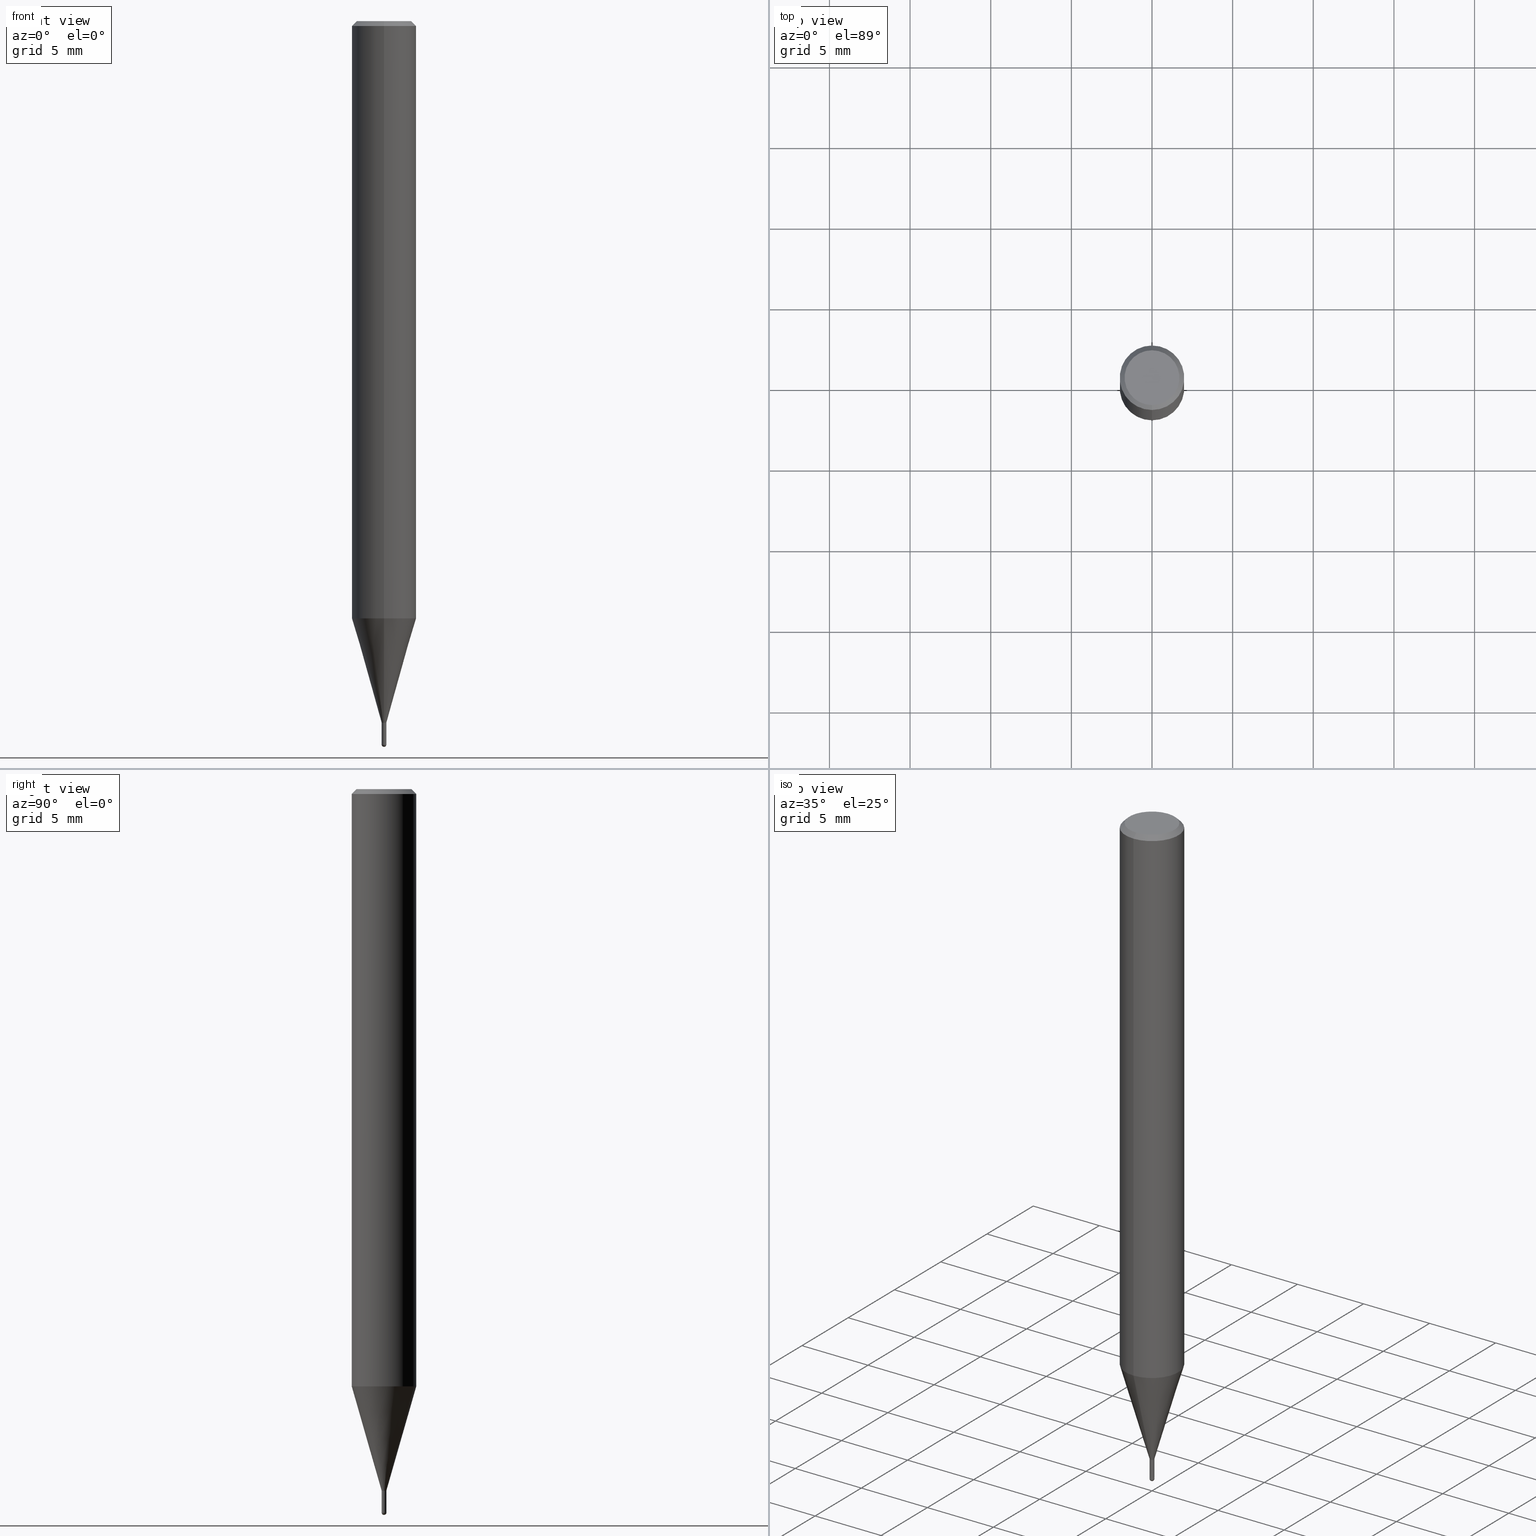
[diagram: canonical four-view strip — front | top / right | iso, engineering-drawing reading convention]
A machine part, canonical four-view strip (front | top / right | iso — engineering-drawing reading convention). The complete STEP part file that produces these views, byte-faithful:
ISO-10303-21;
HEADER;
FILE_DESCRIPTION(('no description'),'unknown implementation level');
FILE_NAME('HSLB2003-015-Huellk.stp','  ',('CIMSOURCE GmbH'),('CADClick - KiM GmbH - www.kimweb.de'),'unknown preprocess','ACIS','unknown authorization');
FILE_SCHEMA(('automotive_design'));
ENDSEC;
DATA;
#1=MECHANICAL_DESIGN_GEOMETRIC_PRESENTATION_REPRESENTATION(' ',(#14,#15,#16,#17,#18,#19,#20,#21,#22,#23,#24,#25,#26,#27,#28,#29,#30,#31,#32,#33,#34,#35,#36,#37,#38,#39,#40,#41,#42,#43,#44,#45,#46,#47,#48,#49,#50,#51,#52,#53,#54,#55,#56,#57,#58,#59,#60,#61,#62,#63,#64,#65,#66,#67,#68,#69,#70,#71,#72,#73,#74),#10);
#2=PRODUCT_DEFINITION_CONTEXT('',#75,'design');
#3=APPLICATION_PROTOCOL_DEFINITION('INTERNATIONAL STANDARD','automotive_design',1994,#75);
#4=PRODUCT_CATEGORY_RELATIONSHIP('NONE','NONE',#76,#77);
#5=SHAPE_DEFINITION_REPRESENTATION(#78,#79);
#6=PRODUCT_DEFINITION_CONTEXT('',#80,'design');
#7=APPLICATION_PROTOCOL_DEFINITION('INTERNATIONAL STANDARD','automotive_design',1994,#80);
#8=PRODUCT_CATEGORY_RELATIONSHIP('NONE','NONE',#81,#82);
#9=SHAPE_DEFINITION_REPRESENTATION(#83,#84);
#10= (GEOMETRIC_REPRESENTATION_CONTEXT(3)GLOBAL_UNCERTAINTY_ASSIGNED_CONTEXT((#87))GLOBAL_UNIT_ASSIGNED_CONTEXT((#89,#90,#91))REPRESENTATION_CONTEXT('NONE','WORKSPACE'));
#14=STYLED_ITEM('',(#93),#94);
#15=STYLED_ITEM('',(#95),#96);
#16=STYLED_ITEM('',(#97),#98);
#17=STYLED_ITEM('',(#99),#100);
#18=STYLED_ITEM('',(#101),#102);
#19=STYLED_ITEM('',(#103),#104);
#20=STYLED_ITEM('',(#105),#106);
#21=STYLED_ITEM('',(#107),#108);
#22=STYLED_ITEM('',(#109),#110);
#23=STYLED_ITEM('',(#111),#112);
#24=STYLED_ITEM('',(#113),#114);
#25=STYLED_ITEM('',(#115),#116);
#26=STYLED_ITEM('',(#117),#118);
#27=STYLED_ITEM('',(#119),#120);
#28=STYLED_ITEM('',(#121),#122);
#29=STYLED_ITEM('',(#123),#124);
#30=STYLED_ITEM('',(#125),#126);
#31=STYLED_ITEM('',(#127),#128);
#32=STYLED_ITEM('',(#129),#130);
#33=STYLED_ITEM('',(#131),#132);
#34=STYLED_ITEM('',(#133),#134);
#35=STYLED_ITEM('',(#135),#136);
#36=STYLED_ITEM('',(#137),#138);
#37=STYLED_ITEM('',(#139),#140);
#38=STYLED_ITEM('',(#141),#142);
#39=STYLED_ITEM('',(#143),#144);
#40=STYLED_ITEM('',(#145),#146);
#41=STYLED_ITEM('',(#147),#148);
#42=STYLED_ITEM('',(#149),#150);
#43=STYLED_ITEM('',(#151),#152);
#44=STYLED_ITEM('',(#153),#154);
#45=STYLED_ITEM('',(#155),#156);
#46=STYLED_ITEM('',(#157),#158);
#47=STYLED_ITEM('',(#159),#160);
#48=STYLED_ITEM('',(#161),#162);
#49=STYLED_ITEM('',(#163),#164);
#50=STYLED_ITEM('',(#165),#166);
#51=STYLED_ITEM('',(#167),#168);
#52=STYLED_ITEM('',(#169),#170);
#53=STYLED_ITEM('',(#171),#172);
#54=STYLED_ITEM('',(#173),#174);
#55=STYLED_ITEM('',(#175),#176);
#56=STYLED_ITEM('',(#177),#178);
#57=STYLED_ITEM('',(#179),#180);
#58=STYLED_ITEM('',(#181),#182);
#59=STYLED_ITEM('',(#183),#184);
#60=STYLED_ITEM('',(#185),#186);
#61=STYLED_ITEM('',(#187),#188);
#62=STYLED_ITEM('',(#189),#190);
#63=STYLED_ITEM('',(#191),#192);
#64=STYLED_ITEM('',(#193),#194);
#65=STYLED_ITEM('',(#195),#196);
#66=STYLED_ITEM('',(#197),#198);
#67=STYLED_ITEM('',(#199),#200);
#68=STYLED_ITEM('',(#201),#202);
#69=STYLED_ITEM('',(#203),#204);
#70=STYLED_ITEM('',(#205),#206);
#71=STYLED_ITEM('',(#207),#208);
#72=STYLED_ITEM('',(#209),#210);
#73=STYLED_ITEM('',(#211),#212);
#74=STYLED_ITEM('',(#213),#214);
#75=APPLICATION_CONTEXT(' ');
#76=PRODUCT_CATEGORY('part','NONE');
#77=PRODUCT_RELATED_PRODUCT_CATEGORY('detail',' ',(#215));
#78=PRODUCT_DEFINITION_SHAPE('NONE','NONE',#216);
#79=ADVANCED_BREP_SHAPE_REPRESENTATION('1',(#214,#217),#10);
#80=APPLICATION_CONTEXT(' ');
#81=PRODUCT_CATEGORY('part','NONE');
#82=PRODUCT_RELATED_PRODUCT_CATEGORY('detail',' ',(#218));
#83=PRODUCT_DEFINITION_SHAPE('NONE','NONE',#219);
#84=ADVANCED_BREP_SHAPE_REPRESENTATION('2',(#176,#220),#10);
#87=UNCERTAINTY_MEASURE_WITH_UNIT(LENGTH_MEASURE(1.0E-006),#89,'','');
#89= (CONVERSION_BASED_UNIT('MILLIMETRE',#223)LENGTH_UNIT()NAMED_UNIT(#226));
#90= (NAMED_UNIT(#228)PLANE_ANGLE_UNIT()SI_UNIT($,.RADIAN.));
#91= (NAMED_UNIT(#228)SOLID_ANGLE_UNIT()SI_UNIT($,.STERADIAN.));
#93=PRESENTATION_STYLE_ASSIGNMENT((#234));
#94=ADVANCED_FACE('',(#235),#236,.T.);
#95=PRESENTATION_STYLE_ASSIGNMENT((#237));
#96=EDGE_CURVE('',#166,#152,#238,.T.);
#97=PRESENTATION_STYLE_ASSIGNMENT((#239));
#98=EDGE_CURVE('',#186,#142,#240,.T.);
#99=PRESENTATION_STYLE_ASSIGNMENT((#241));
#100=EDGE_CURVE('',#136,#130,#242,.T.);
#101=PRESENTATION_STYLE_ASSIGNMENT((#243));
#102=EDGE_CURVE('',#104,#136,#244,.T.);
#103=PRESENTATION_STYLE_ASSIGNMENT((#245));
#104=VERTEX_POINT('',#246);
#105=PRESENTATION_STYLE_ASSIGNMENT((#247));
#106=EDGE_CURVE('',#118,#110,#248,.T.);
#107=PRESENTATION_STYLE_ASSIGNMENT((#249));
#108=EDGE_CURVE('',#186,#196,#250,.T.);
#109=PRESENTATION_STYLE_ASSIGNMENT((#251));
#110=VERTEX_POINT('',#252);
#111=PRESENTATION_STYLE_ASSIGNMENT((#253));
#112=ADVANCED_FACE('',(#254),#255,.T.);
#113=PRESENTATION_STYLE_ASSIGNMENT((#256));
#114=EDGE_CURVE('',#110,#130,#257,.T.);
#115=PRESENTATION_STYLE_ASSIGNMENT((#258));
#116=EDGE_CURVE('',#166,#174,#259,.T.);
#117=PRESENTATION_STYLE_ASSIGNMENT((#260));
#118=VERTEX_POINT('',#261);
#119=PRESENTATION_STYLE_ASSIGNMENT((#262));
#120=EDGE_CURVE('',#154,#208,#263,.T.);
#121=PRESENTATION_STYLE_ASSIGNMENT((#264));
#122=ADVANCED_FACE('',(#265),#266,.T.);
#123=PRESENTATION_STYLE_ASSIGNMENT((#267));
#124=ADVANCED_FACE('',(#268),#269,.T.);
#125=PRESENTATION_STYLE_ASSIGNMENT((#270));
#126=EDGE_CURVE('',#196,#208,#271,.T.);
#127=PRESENTATION_STYLE_ASSIGNMENT((#272));
#128=EDGE_CURVE('',#110,#104,#273,.T.);
#129=PRESENTATION_STYLE_ASSIGNMENT((#274));
#130=VERTEX_POINT('',#275);
#131=PRESENTATION_STYLE_ASSIGNMENT((#276));
#132=EDGE_CURVE('',#210,#174,#277,.T.);
#133=PRESENTATION_STYLE_ASSIGNMENT((#278));
#134=EDGE_CURVE('',#208,#154,#279,.T.);
#135=PRESENTATION_STYLE_ASSIGNMENT((#280));
#136=VERTEX_POINT('',#281);
#137=PRESENTATION_STYLE_ASSIGNMENT((#282));
#138=EDGE_CURVE('',#136,#104,#283,.T.);
#139=PRESENTATION_STYLE_ASSIGNMENT((#284));
#140=ADVANCED_FACE('',(#285,#286),#287,.T.);
#141=PRESENTATION_STYLE_ASSIGNMENT((#288));
#142=VERTEX_POINT('',#289);
#143=PRESENTATION_STYLE_ASSIGNMENT((#290));
#144=EDGE_CURVE('',#130,#172,#291,.T.);
#145=PRESENTATION_STYLE_ASSIGNMENT((#292));
#146=ADVANCED_FACE('',(#293),#294,.T.);
#147=PRESENTATION_STYLE_ASSIGNMENT((#295));
#148=ADVANCED_FACE('',(#296),#297,.T.);
#149=PRESENTATION_STYLE_ASSIGNMENT((#298));
#150=ADVANCED_FACE('',(#299),#300,.T.);
#151=PRESENTATION_STYLE_ASSIGNMENT((#301));
#152=VERTEX_POINT('',#302);
#153=PRESENTATION_STYLE_ASSIGNMENT((#303));
#154=VERTEX_POINT('',#304);
#155=PRESENTATION_STYLE_ASSIGNMENT((#305));
#156=EDGE_CURVE('',#174,#166,#306,.T.);
#157=PRESENTATION_STYLE_ASSIGNMENT((#307));
#158=EDGE_CURVE('',#152,#210,#308,.T.);
#159=PRESENTATION_STYLE_ASSIGNMENT((#309));
#160=EDGE_CURVE('',#210,#152,#310,.T.);
#161=PRESENTATION_STYLE_ASSIGNMENT((#311));
#162=EDGE_CURVE('',#180,#142,#312,.T.);
#163=PRESENTATION_STYLE_ASSIGNMENT((#313));
#164=EDGE_CURVE('',#180,#196,#314,.T.);
#165=PRESENTATION_STYLE_ASSIGNMENT((#315));
#166=VERTEX_POINT('',#316);
#167=PRESENTATION_STYLE_ASSIGNMENT((#317));
#168=EDGE_CURVE('',#172,#118,#318,.T.);
#169=PRESENTATION_STYLE_ASSIGNMENT((#319));
#170=EDGE_CURVE('',#166,#174,#320,.T.);
#171=PRESENTATION_STYLE_ASSIGNMENT((#321));
#172=VERTEX_POINT('',#322);
#173=PRESENTATION_STYLE_ASSIGNMENT((#323));
#174=VERTEX_POINT('',#324);
#175=PRESENTATION_STYLE_ASSIGNMENT((#325));
#176=MANIFOLD_SOLID_BREP('2',#326);
#177=PRESENTATION_STYLE_ASSIGNMENT((#327));
#178=ADVANCED_FACE('',(#328),#329,.T.);
#179=PRESENTATION_STYLE_ASSIGNMENT((#330));
#180=VERTEX_POINT('',#331);
#181=PRESENTATION_STYLE_ASSIGNMENT((#332));
#182=ADVANCED_FACE('',(#333),#334,.T.);
#183=PRESENTATION_STYLE_ASSIGNMENT((#335));
#184=ADVANCED_FACE('',(#336),#337,.T.);
#185=PRESENTATION_STYLE_ASSIGNMENT((#338));
#186=VERTEX_POINT('',#339);
#187=PRESENTATION_STYLE_ASSIGNMENT((#340));
#188=ADVANCED_FACE('',(#341),#342,.T.);
#189=PRESENTATION_STYLE_ASSIGNMENT((#343));
#190=EDGE_CURVE('',#118,#172,#344,.T.);
#191=PRESENTATION_STYLE_ASSIGNMENT((#345));
#192=EDGE_CURVE('',#130,#110,#346,.T.);
#193=PRESENTATION_STYLE_ASSIGNMENT((#347));
#194=EDGE_CURVE('',#196,#186,#348,.T.);
#195=PRESENTATION_STYLE_ASSIGNMENT((#349));
#196=VERTEX_POINT('',#350);
#197=PRESENTATION_STYLE_ASSIGNMENT((#351));
#198=ADVANCED_FACE('',(#352),#353,.T.);
#199=PRESENTATION_STYLE_ASSIGNMENT((#354));
#200=ADVANCED_FACE('',(#355),#356,.T.);
#201=PRESENTATION_STYLE_ASSIGNMENT((#357));
#202=ADVANCED_FACE('',(#358),#359,.T.);
#203=PRESENTATION_STYLE_ASSIGNMENT((#360));
#204=EDGE_CURVE('',#154,#186,#361,.T.);
#205=PRESENTATION_STYLE_ASSIGNMENT((#362));
#206=EDGE_CURVE('',#142,#180,#363,.T.);
#207=PRESENTATION_STYLE_ASSIGNMENT((#364));
#208=VERTEX_POINT('',#365);
#209=PRESENTATION_STYLE_ASSIGNMENT((#366));
#210=VERTEX_POINT('',#367);
#211=PRESENTATION_STYLE_ASSIGNMENT((#368));
#212=ADVANCED_FACE('',(#369),#370,.T.);
#213=PRESENTATION_STYLE_ASSIGNMENT((#371));
#214=MANIFOLD_SOLID_BREP('1',#372);
#215=PRODUCT('1','1','PART-1-DESC',(#373));
#216=PRODUCT_DEFINITION('NONE','NONE',#374,#2);
#217=AXIS2_PLACEMENT_3D('',#375,#376,#377);
#218=PRODUCT('2','2','PART-2-DESC',(#378));
#219=PRODUCT_DEFINITION('NONE','NONE',#379,#6);
#220=AXIS2_PLACEMENT_3D('',#380,#381,#382);
#223=LENGTH_MEASURE_WITH_UNIT(LENGTH_MEASURE(1.0),#383);
#226=DIMENSIONAL_EXPONENTS(1.0,0.0,0.0,0.0,0.0,0.0,0.0);
#228=DIMENSIONAL_EXPONENTS(0.0,0.0,0.0,0.0,0.0,0.0,0.0);
#234=SURFACE_STYLE_USAGE(.BOTH.,#384);
#235=FACE_OUTER_BOUND('',#385,.T.);
#236=SPHERICAL_SURFACE('',#386,0.15);
#237=CURVE_STYLE('',#387,POSITIVE_LENGTH_MEASURE(1.0E-006),#388);
#238=LINE('',#389,#390);
#239=CURVE_STYLE('',#391,POSITIVE_LENGTH_MEASURE(1.0E-006),#392);
#240=LINE('',#393,#394);
#241=CURVE_STYLE('',#395,POSITIVE_LENGTH_MEASURE(1.0E-006),#396);
#242=LINE('',#397,#398);
#243=CURVE_STYLE('',#399,POSITIVE_LENGTH_MEASURE(1.0E-006),#400);
#244=CIRCLE('',#401,2.0);
#245=POINT_STYLE(' ',#402,POSITIVE_LENGTH_MEASURE(1.0E-006),#403);
#246=CARTESIAN_POINT('',(0.0,2.0,-37.031));
#247=CURVE_STYLE('',#404,POSITIVE_LENGTH_MEASURE(1.0E-006),#405);
#248=LINE('',#406,#407);
#249=CURVE_STYLE('',#408,POSITIVE_LENGTH_MEASURE(1.0E-006),#409);
#250=CIRCLE('',#410,0.14495);
#251=POINT_STYLE(' ',#411,POSITIVE_LENGTH_MEASURE(1.0E-006),#412);
#252=CARTESIAN_POINT('',(0.0,2.0,-0.299999999999997));
#253=SURFACE_STYLE_USAGE(.BOTH.,#413);
#254=FACE_OUTER_BOUND('',#414,.T.);
#255=CONICAL_SURFACE('',#415,1.85,0.785398163397453);
#256=CURVE_STYLE('',#416,POSITIVE_LENGTH_MEASURE(1.0E-006),#417);
#257=CIRCLE('',#418,2.0);
#258=CURVE_STYLE('',#419,POSITIVE_LENGTH_MEASURE(1.0E-006),#420);
#259=CIRCLE('',#421,0.15);
#260=POINT_STYLE(' ',#422,POSITIVE_LENGTH_MEASURE(1.0E-006),#423);
#261=CARTESIAN_POINT('',(0.0,1.7,0.0));
#262=CURVE_STYLE('',#424,POSITIVE_LENGTH_MEASURE(1.0E-006),#425);
#263=CIRCLE('',#426,1.99995);
#264=SURFACE_STYLE_USAGE(.BOTH.,#427);
#265=FACE_OUTER_BOUND('',#428,.T.);
#266=PLANE('',#429);
#267=SURFACE_STYLE_USAGE(.BOTH.,#430);
#268=FACE_OUTER_BOUND('',#431,.T.);
#269=CONICAL_SURFACE('',#432,0.14995,0.00111111065386396);
#270=CURVE_STYLE('',#433,POSITIVE_LENGTH_MEASURE(1.0E-006),#434);
#271=LINE('',#435,#436);
#272=CURVE_STYLE('',#437,POSITIVE_LENGTH_MEASURE(1.0E-006),#438);
#273=LINE('',#439,#440);
#274=POINT_STYLE(' ',#441,POSITIVE_LENGTH_MEASURE(1.0E-006),#442);
#275=CARTESIAN_POINT('',(2.44921270764475E-016,-2.0,-0.299999999999997));
#276=CURVE_STYLE('',#443,POSITIVE_LENGTH_MEASURE(1.0E-006),#444);
#277=LINE('',#445,#446);
#278=CURVE_STYLE('',#447,POSITIVE_LENGTH_MEASURE(1.0E-006),#448);
#279=CIRCLE('',#449,1.99995);
#280=POINT_STYLE(' ',#450,POSITIVE_LENGTH_MEASURE(1.0E-006),#451);
#281=CARTESIAN_POINT('',(2.44921270764475E-016,-2.0,-37.031));
#282=CURVE_STYLE('',#452,POSITIVE_LENGTH_MEASURE(1.0E-006),#453);
#283=CIRCLE('',#454,2.0);
#284=SURFACE_STYLE_USAGE(.BOTH.,#455);
#285=FACE_OUTER_BOUND('',#456,.T.);
#286=FACE_BOUND('',#457,.T.);
#287=PLANE('',#458);
#288=POINT_STYLE(' ',#459,POSITIVE_LENGTH_MEASURE(1.0E-006),#460);
#289=CARTESIAN_POINT('',(0.0,0.14495,-44.76));
#290=CURVE_STYLE('',#461,POSITIVE_LENGTH_MEASURE(1.0E-006),#462);
#291=LINE('',#463,#464);
#292=SURFACE_STYLE_USAGE(.BOTH.,#465);
#293=FACE_OUTER_BOUND('',#466,.T.);
#294=CYLINDRICAL_SURFACE('',#467,0.14495);
#295=SURFACE_STYLE_USAGE(.BOTH.,#468);
#296=FACE_OUTER_BOUND('',#469,.T.);
#297=CONICAL_SURFACE('',#470,1.07245,0.279258979430111);
#298=SURFACE_STYLE_USAGE(.BOTH.,#471);
#299=FACE_OUTER_BOUND('',#472,.T.);
#300=PLANE('',#473);
#301=POINT_STYLE(' ',#474,POSITIVE_LENGTH_MEASURE(1.0E-006),#475);
#302=CARTESIAN_POINT('',(1.83568492437974E-017,-0.1499,-44.76));
#303=POINT_STYLE(' ',#476,POSITIVE_LENGTH_MEASURE(1.0E-006),#477);
#304=CARTESIAN_POINT('',(0.0,1.99995,-37.031));
#305=CURVE_STYLE('',#478,POSITIVE_LENGTH_MEASURE(1.0E-006),#479);
#306=CIRCLE('',#480,0.15);
#307=CURVE_STYLE('',#481,POSITIVE_LENGTH_MEASURE(1.0E-006),#482);
#308=CIRCLE('',#483,0.1499);
#309=CURVE_STYLE('',#484,POSITIVE_LENGTH_MEASURE(1.0E-006),#485);
#310=CIRCLE('',#486,0.1499);
#311=CURVE_STYLE('',#487,POSITIVE_LENGTH_MEASURE(1.0E-006),#488);
#312=CIRCLE('',#489,0.14495);
#313=CURVE_STYLE('',#490,POSITIVE_LENGTH_MEASURE(1.0E-006),#491);
#314=LINE('',#492,#493);
#315=POINT_STYLE(' ',#494,POSITIVE_LENGTH_MEASURE(1.0E-006),#495);
#316=CARTESIAN_POINT('',(1.83690953073356E-017,-0.15,-44.85));
#317=CURVE_STYLE('',#496,POSITIVE_LENGTH_MEASURE(1.0E-006),#497);
#318=CIRCLE('',#498,1.7);
#319=CURVE_STYLE('',#499,POSITIVE_LENGTH_MEASURE(1.0E-006),#500);
#320=CIRCLE('',#501,0.15);
#321=POINT_STYLE(' ',#502,POSITIVE_LENGTH_MEASURE(1.0E-006),#503);
#322=CARTESIAN_POINT('',(2.08183080149804E-016,-1.7,0.0));
#323=POINT_STYLE(' ',#504,POSITIVE_LENGTH_MEASURE(1.0E-006),#505);
#324=CARTESIAN_POINT('',(0.0,0.15,-44.85));
#325=SURFACE_STYLE_USAGE(.BOTH.,#506);
#326=CLOSED_SHELL('',(#198,#124,#150,#178,#94));
#327=SURFACE_STYLE_USAGE(.BOTH.,#507);
#328=FACE_OUTER_BOUND('',#508,.T.);
#329=CONICAL_SURFACE('',#509,0.14995,0.00111111065386396);
#330=POINT_STYLE(' ',#510,POSITIVE_LENGTH_MEASURE(1.0E-006),#511);
#331=CARTESIAN_POINT('',(1.77506690986554E-017,-0.14495,-44.76));
#332=SURFACE_STYLE_USAGE(.BOTH.,#512);
#333=FACE_OUTER_BOUND('',#513,.T.);
#334=CYLINDRICAL_SURFACE('',#514,2.0);
#335=SURFACE_STYLE_USAGE(.BOTH.,#515);
#336=FACE_OUTER_BOUND('',#516,.T.);
#337=CONICAL_SURFACE('',#517,1.85,0.785398163397453);
#338=POINT_STYLE(' ',#518,POSITIVE_LENGTH_MEASURE(1.0E-006),#519);
#339=CARTESIAN_POINT('',(0.0,0.14495,-43.5));
#340=SURFACE_STYLE_USAGE(.BOTH.,#520);
#341=FACE_OUTER_BOUND('',#521,.T.);
#342=CYLINDRICAL_SURFACE('',#522,0.14495);
#343=CURVE_STYLE('',#523,POSITIVE_LENGTH_MEASURE(1.0E-006),#524);
#344=CIRCLE('',#525,1.7);
#345=CURVE_STYLE('',#526,POSITIVE_LENGTH_MEASURE(1.0E-006),#527);
#346=CIRCLE('',#528,2.0);
#347=CURVE_STYLE('',#529,POSITIVE_LENGTH_MEASURE(1.0E-006),#530);
#348=CIRCLE('',#531,0.14495);
#349=POINT_STYLE(' ',#532,POSITIVE_LENGTH_MEASURE(1.0E-006),#533);
#350=CARTESIAN_POINT('',(1.77506690986553E-017,-0.14495,-43.5));
#351=SURFACE_STYLE_USAGE(.BOTH.,#534);
#352=FACE_OUTER_BOUND('',#535,.T.);
#353=SPHERICAL_SURFACE('',#536,0.15);
#354=SURFACE_STYLE_USAGE(.BOTH.,#537);
#355=FACE_OUTER_BOUND('',#538,.T.);
#356=PLANE('',#539);
#357=SURFACE_STYLE_USAGE(.BOTH.,#540);
#358=FACE_OUTER_BOUND('',#541,.T.);
#359=CONICAL_SURFACE('',#542,1.07245,0.279258979430111);
#360=CURVE_STYLE('',#543,POSITIVE_LENGTH_MEASURE(1.0E-006),#544);
#361=LINE('',#545,#546);
#362=CURVE_STYLE('',#547,POSITIVE_LENGTH_MEASURE(1.0E-006),#548);
#363=CIRCLE('',#549,0.14495);
#364=POINT_STYLE(' ',#550,POSITIVE_LENGTH_MEASURE(1.0E-006),#551);
#365=CARTESIAN_POINT('',(2.44915147732706E-016,-1.99995,-37.031));
#366=POINT_STYLE(' ',#552,POSITIVE_LENGTH_MEASURE(1.0E-006),#553);
#367=CARTESIAN_POINT('',(0.0,0.1499,-44.76));
#368=SURFACE_STYLE_USAGE(.BOTH.,#554);
#369=FACE_OUTER_BOUND('',#555,.T.);
#370=CYLINDRICAL_SURFACE('',#556,2.0);
#371=SURFACE_STYLE_USAGE(.BOTH.,#557);
#372=CLOSED_SHELL('',(#188,#148,#182,#184,#140,#200,#112,#212,#202,#146,#122));
#373=PRODUCT_CONTEXT('',#75,'mechanical');
#374=PRODUCT_DEFINITION_FORMATION_WITH_SPECIFIED_SOURCE(' ','NONE',#215,.NOT_KNOWN.);
#375=CARTESIAN_POINT('',(0.0,0.0,0.0));
#376=DIRECTION('',(0.0,0.0,1.0));
#377=DIRECTION('',(1.0,0.0,0.0));
#378=PRODUCT_CONTEXT('',#80,'mechanical');
#379=PRODUCT_DEFINITION_FORMATION_WITH_SPECIFIED_SOURCE(' ','NONE',#218,.NOT_KNOWN.);
#380=CARTESIAN_POINT('',(0.0,0.0,0.0));
#381=DIRECTION('',(0.0,0.0,1.0));
#382=DIRECTION('',(1.0,0.0,0.0));
#383= (NAMED_UNIT(#226)LENGTH_UNIT()SI_UNIT(.MILLI.,.METRE.));
#384=SURFACE_SIDE_STYLE('',(#559));
#385=EDGE_LOOP('',(#560,#561));
#386=AXIS2_PLACEMENT_3D('',#562,#563,#564);
#387=DRAUGHTING_PRE_DEFINED_CURVE_FONT('continuous');
#388=COLOUR_RGB('',0.800000011920929,0.800000011920929,0.800000011920929);
#389=CARTESIAN_POINT('',(1.83629722755665E-017,-0.14995,-44.805));
#390=VECTOR('',#565,1.0);
#391=DRAUGHTING_PRE_DEFINED_CURVE_FONT('continuous');
#392=COLOUR_RGB('',0.498039215803146,0.498039215803146,0.498039215803146);
#393=CARTESIAN_POINT('',(-1.77506690986554E-017,0.14495,-44.13));
#394=VECTOR('',#566,1.0);
#395=DRAUGHTING_PRE_DEFINED_CURVE_FONT('continuous');
#396=COLOUR_RGB('',0.498039215803146,0.498039215803146,0.498039215803146);
#397=CARTESIAN_POINT('',(2.44921270764475E-016,-2.0,-18.6655));
#398=VECTOR('',#567,1.0);
#399=DRAUGHTING_PRE_DEFINED_CURVE_FONT('continuous');
#400=COLOUR_RGB('',0.498039215803146,0.498039215803146,0.498039215803146);
#401=AXIS2_PLACEMENT_3D('',#568,#569,#570);
#402=PRE_DEFINED_MARKER('');
#403=COLOUR_RGB('',0.498039215803146,0.498039215803146,0.498039215803146);
#404=DRAUGHTING_PRE_DEFINED_CURVE_FONT('continuous');
#405=COLOUR_RGB('',0.498039215803146,0.498039215803146,0.498039215803146);
#406=CARTESIAN_POINT('',(-2.2655217545714E-016,1.85,-0.149999999999999));
#407=VECTOR('',#571,1.0);
#408=DRAUGHTING_PRE_DEFINED_CURVE_FONT('continuous');
#409=COLOUR_RGB('',0.498039215803146,0.498039215803146,0.498039215803146);
#410=AXIS2_PLACEMENT_3D('',#572,#573,#574);
#411=PRE_DEFINED_MARKER('');
#412=COLOUR_RGB('',0.498039215803146,0.498039215803146,0.498039215803146);
#413=SURFACE_SIDE_STYLE('',(#575));
#414=EDGE_LOOP('',(#576,#577,#578,#579));
#415=AXIS2_PLACEMENT_3D('',#580,#581,#582);
#416=DRAUGHTING_PRE_DEFINED_CURVE_FONT('continuous');
#417=COLOUR_RGB('',0.498039215803146,0.498039215803146,0.498039215803146);
#418=AXIS2_PLACEMENT_3D('',#583,#584,#585);
#419=DRAUGHTING_PRE_DEFINED_CURVE_FONT('continuous');
#420=COLOUR_RGB('',0.800000011920929,0.800000011920929,0.800000011920929);
#421=AXIS2_PLACEMENT_3D('',#586,#587,#588);
#422=PRE_DEFINED_MARKER('');
#423=COLOUR_RGB('',0.498039215803146,0.498039215803146,0.498039215803146);
#424=DRAUGHTING_PRE_DEFINED_CURVE_FONT('continuous');
#425=COLOUR_RGB('',0.498039215803146,0.498039215803146,0.498039215803146);
#426=AXIS2_PLACEMENT_3D('',#589,#590,#591);
#427=SURFACE_SIDE_STYLE('',(#592));
#428=EDGE_LOOP('',(#593,#594));
#429=AXIS2_PLACEMENT_3D('',#595,#596,#597);
#430=SURFACE_SIDE_STYLE('',(#598));
#431=EDGE_LOOP('',(#599,#600,#601,#602));
#432=AXIS2_PLACEMENT_3D('',#603,#604,#605);
#433=DRAUGHTING_PRE_DEFINED_CURVE_FONT('continuous');
#434=COLOUR_RGB('',0.498039215803146,0.498039215803146,0.498039215803146);
#435=CARTESIAN_POINT('',(1.31332908415681E-016,-1.07245,-40.2655));
#436=VECTOR('',#606,1.0);
#437=DRAUGHTING_PRE_DEFINED_CURVE_FONT('continuous');
#438=COLOUR_RGB('',0.498039215803146,0.498039215803146,0.498039215803146);
#439=CARTESIAN_POINT('',(-2.44921270764475E-016,2.0,-18.6655));
#440=VECTOR('',#607,1.0);
#441=PRE_DEFINED_MARKER('');
#442=COLOUR_RGB('',0.498039215803146,0.498039215803146,0.498039215803146);
#443=DRAUGHTING_PRE_DEFINED_CURVE_FONT('continuous');
#444=COLOUR_RGB('',0.800000011920929,0.800000011920929,0.800000011920929);
#445=CARTESIAN_POINT('',(-1.83629722755665E-017,0.14995,-44.805));
#446=VECTOR('',#608,1.0);
#447=DRAUGHTING_PRE_DEFINED_CURVE_FONT('continuous');
#448=COLOUR_RGB('',0.498039215803146,0.498039215803146,0.498039215803146);
#449=AXIS2_PLACEMENT_3D('',#609,#610,#611);
#450=PRE_DEFINED_MARKER('');
#451=COLOUR_RGB('',0.498039215803146,0.498039215803146,0.498039215803146);
#452=DRAUGHTING_PRE_DEFINED_CURVE_FONT('continuous');
#453=COLOUR_RGB('',0.498039215803146,0.498039215803146,0.498039215803146);
#454=AXIS2_PLACEMENT_3D('',#612,#613,#614);
#455=SURFACE_SIDE_STYLE('',(#615));
#456=EDGE_LOOP('',(#616,#617));
#457=EDGE_LOOP('',(#618,#619));
#458=AXIS2_PLACEMENT_3D('',#620,#621,#622);
#459=PRE_DEFINED_MARKER('');
#460=COLOUR_RGB('',0.498039215803146,0.498039215803146,0.498039215803146);
#461=DRAUGHTING_PRE_DEFINED_CURVE_FONT('continuous');
#462=COLOUR_RGB('',0.498039215803146,0.498039215803146,0.498039215803146);
#463=CARTESIAN_POINT('',(2.2655217545714E-016,-1.85,-0.149999999999999));
#464=VECTOR('',#623,1.0);
#465=SURFACE_SIDE_STYLE('',(#624));
#466=EDGE_LOOP('',(#625,#626,#627,#628));
#467=AXIS2_PLACEMENT_3D('',#629,#630,#631);
#468=SURFACE_SIDE_STYLE('',(#632));
#469=EDGE_LOOP('',(#633,#634,#635,#636));
#470=AXIS2_PLACEMENT_3D('',#637,#638,#639);
#471=SURFACE_SIDE_STYLE('',(#640));
#472=EDGE_LOOP('',(#641,#642));
#473=AXIS2_PLACEMENT_3D('',#643,#644,#645);
#474=PRE_DEFINED_MARKER('');
#475=COLOUR_RGB('',0.800000011920929,0.800000011920929,0.800000011920929);
#476=PRE_DEFINED_MARKER('');
#477=COLOUR_RGB('',0.498039215803146,0.498039215803146,0.498039215803146);
#478=DRAUGHTING_PRE_DEFINED_CURVE_FONT('continuous');
#479=COLOUR_RGB('',0.800000011920929,0.800000011920929,0.800000011920929);
#480=AXIS2_PLACEMENT_3D('',#646,#647,#648);
#481=DRAUGHTING_PRE_DEFINED_CURVE_FONT('continuous');
#482=COLOUR_RGB('',0.800000011920929,0.800000011920929,0.800000011920929);
#483=AXIS2_PLACEMENT_3D('',#649,#650,#651);
#484=DRAUGHTING_PRE_DEFINED_CURVE_FONT('continuous');
#485=COLOUR_RGB('',0.800000011920929,0.800000011920929,0.800000011920929);
#486=AXIS2_PLACEMENT_3D('',#652,#653,#654);
#487=DRAUGHTING_PRE_DEFINED_CURVE_FONT('continuous');
#488=COLOUR_RGB('',0.498039215803146,0.498039215803146,0.498039215803146);
#489=AXIS2_PLACEMENT_3D('',#655,#656,#657);
#490=DRAUGHTING_PRE_DEFINED_CURVE_FONT('continuous');
#491=COLOUR_RGB('',0.498039215803146,0.498039215803146,0.498039215803146);
#492=CARTESIAN_POINT('',(1.77506690986554E-017,-0.14495,-44.13));
#493=VECTOR('',#658,1.0);
#494=PRE_DEFINED_MARKER('');
#495=COLOUR_RGB('',0.800000011920929,0.800000011920929,0.800000011920929);
#496=DRAUGHTING_PRE_DEFINED_CURVE_FONT('continuous');
#497=COLOUR_RGB('',0.498039215803146,0.498039215803146,0.498039215803146);
#498=AXIS2_PLACEMENT_3D('',#659,#660,#661);
#499=DRAUGHTING_PRE_DEFINED_CURVE_FONT('continuous');
#500=COLOUR_RGB('',0.800000011920929,0.800000011920929,0.800000011920929);
#501=AXIS2_PLACEMENT_3D('',#662,#663,#664);
#502=PRE_DEFINED_MARKER('');
#503=COLOUR_RGB('',0.498039215803146,0.498039215803146,0.498039215803146);
#504=PRE_DEFINED_MARKER('');
#505=COLOUR_RGB('',0.800000011920929,0.800000011920929,0.800000011920929);
#506=SURFACE_SIDE_STYLE('',(#665));
#507=SURFACE_SIDE_STYLE('',(#666));
#508=EDGE_LOOP('',(#667,#668,#669,#670));
#509=AXIS2_PLACEMENT_3D('',#671,#672,#673);
#510=PRE_DEFINED_MARKER('');
#511=COLOUR_RGB('',0.498039215803146,0.498039215803146,0.498039215803146);
#512=SURFACE_SIDE_STYLE('',(#674));
#513=EDGE_LOOP('',(#675,#676,#677,#678));
#514=AXIS2_PLACEMENT_3D('',#679,#680,#681);
#515=SURFACE_SIDE_STYLE('',(#682));
#516=EDGE_LOOP('',(#683,#684,#685,#686));
#517=AXIS2_PLACEMENT_3D('',#687,#688,#689);
#518=PRE_DEFINED_MARKER('');
#519=COLOUR_RGB('',0.498039215803146,0.498039215803146,0.498039215803146);
#520=SURFACE_SIDE_STYLE('',(#690));
#521=EDGE_LOOP('',(#691,#692,#693,#694));
#522=AXIS2_PLACEMENT_3D('',#695,#696,#697);
#523=DRAUGHTING_PRE_DEFINED_CURVE_FONT('continuous');
#524=COLOUR_RGB('',0.498039215803146,0.498039215803146,0.498039215803146);
#525=AXIS2_PLACEMENT_3D('',#698,#699,#700);
#526=DRAUGHTING_PRE_DEFINED_CURVE_FONT('continuous');
#527=COLOUR_RGB('',0.498039215803146,0.498039215803146,0.498039215803146);
#528=AXIS2_PLACEMENT_3D('',#701,#702,#703);
#529=DRAUGHTING_PRE_DEFINED_CURVE_FONT('continuous');
#530=COLOUR_RGB('',0.498039215803146,0.498039215803146,0.498039215803146);
#531=AXIS2_PLACEMENT_3D('',#704,#705,#706);
#532=PRE_DEFINED_MARKER('');
#533=COLOUR_RGB('',0.498039215803146,0.498039215803146,0.498039215803146);
#534=SURFACE_SIDE_STYLE('',(#707));
#535=EDGE_LOOP('',(#708,#709));
#536=AXIS2_PLACEMENT_3D('',#710,#711,#712);
#537=SURFACE_SIDE_STYLE('',(#713));
#538=EDGE_LOOP('',(#714,#715));
#539=AXIS2_PLACEMENT_3D('',#716,#717,#718);
#540=SURFACE_SIDE_STYLE('',(#719));
#541=EDGE_LOOP('',(#720,#721,#722,#723));
#542=AXIS2_PLACEMENT_3D('',#724,#725,#726);
#543=DRAUGHTING_PRE_DEFINED_CURVE_FONT('continuous');
#544=COLOUR_RGB('',0.498039215803146,0.498039215803146,0.498039215803146);
#545=CARTESIAN_POINT('',(-1.31332908415681E-016,1.07245,-40.2655));
#546=VECTOR('',#727,1.0);
#547=DRAUGHTING_PRE_DEFINED_CURVE_FONT('continuous');
#548=COLOUR_RGB('',0.498039215803146,0.498039215803146,0.498039215803146);
#549=AXIS2_PLACEMENT_3D('',#728,#729,#730);
#550=PRE_DEFINED_MARKER('');
#551=COLOUR_RGB('',0.498039215803146,0.498039215803146,0.498039215803146);
#552=PRE_DEFINED_MARKER('');
#553=COLOUR_RGB('',0.800000011920929,0.800000011920929,0.800000011920929);
#554=SURFACE_SIDE_STYLE('',(#731));
#555=EDGE_LOOP('',(#732,#733,#734,#735));
#556=AXIS2_PLACEMENT_3D('',#736,#737,#738);
#557=SURFACE_SIDE_STYLE('',(#739));
#559=SURFACE_STYLE_FILL_AREA(#740);
#560=ORIENTED_EDGE('',*,*,#170,.T.);
#561=ORIENTED_EDGE('',*,*,#156,.T.);
#562=CARTESIAN_POINT('',(0.0,0.0,-44.85));
#563=DIRECTION('',(0.0,1.0,0.0));
#564=DIRECTION('',(0.0,0.0,-1.0));
#565=DIRECTION('',(-1.36067288654788E-019,0.00111111042524057,0.999999382716621));
#566=DIRECTION('',(0.0,0.0,-1.0));
#567=DIRECTION('',(-0.0,-0.0,1.0));
#568=CARTESIAN_POINT('',(0.0,0.0,-37.031));
#569=DIRECTION('',(0.0,0.0,-1.0));
#570=DIRECTION('',(0.0,1.0,0.0));
#571=DIRECTION('',(-8.6592745707194E-017,0.707106781186551,-0.707106781186544));
#572=CARTESIAN_POINT('',(0.0,0.0,-43.5));
#573=DIRECTION('',(0.0,0.0,-1.0));
#574=DIRECTION('',(0.0,1.0,0.0));
#575=SURFACE_STYLE_FILL_AREA(#741);
#576=ORIENTED_EDGE('',*,*,#106,.T.);
#577=ORIENTED_EDGE('',*,*,#192,.F.);
#578=ORIENTED_EDGE('',*,*,#144,.T.);
#579=ORIENTED_EDGE('',*,*,#168,.T.);
#580=CARTESIAN_POINT('',(0.0,0.0,-0.149999999999999));
#581=DIRECTION('',(0.0,-0.0,-1.0));
#582=DIRECTION('',(0.0,1.0,0.0));
#583=CARTESIAN_POINT('',(0.0,0.0,-0.299999999999997));
#584=DIRECTION('',(0.0,0.0,-1.0));
#585=DIRECTION('',(0.0,1.0,0.0));
#586=CARTESIAN_POINT('',(0.0,0.0,-44.85));
#587=DIRECTION('',(0.0,0.0,-1.0));
#588=DIRECTION('',(0.0,1.0,0.0));
#589=CARTESIAN_POINT('',(0.0,0.0,-37.031));
#590=DIRECTION('',(0.0,0.0,-1.0));
#591=DIRECTION('',(0.0,1.0,0.0));
#592=SURFACE_STYLE_FILL_AREA(#742);
#593=ORIENTED_EDGE('',*,*,#206,.T.);
#594=ORIENTED_EDGE('',*,*,#162,.T.);
#595=CARTESIAN_POINT('',(0.0,0.072475,-44.76));
#596=DIRECTION('',(0.0,0.0,-1.0));
#597=DIRECTION('',(0.0,1.0,0.0));
#598=SURFACE_STYLE_FILL_AREA(#743);
#599=ORIENTED_EDGE('',*,*,#132,.F.);
#600=ORIENTED_EDGE('',*,*,#160,.T.);
#601=ORIENTED_EDGE('',*,*,#96,.F.);
#602=ORIENTED_EDGE('',*,*,#156,.F.);
#603=CARTESIAN_POINT('',(0.0,0.0,-44.805));
#604=DIRECTION('',(0.0,-0.0,-1.0));
#605=DIRECTION('',(0.0,1.0,0.0));
#606=DIRECTION('',(3.37554672384358E-017,-0.275643410905672,0.961259959648943));
#607=DIRECTION('',(0.0,0.0,-1.0));
#608=DIRECTION('',(-1.36067288654788E-019,0.00111111042524057,-0.999999382716621));
#609=CARTESIAN_POINT('',(0.0,0.0,-37.031));
#610=DIRECTION('',(0.0,0.0,-1.0));
#611=DIRECTION('',(0.0,1.0,0.0));
#612=CARTESIAN_POINT('',(0.0,0.0,-37.031));
#613=DIRECTION('',(0.0,0.0,-1.0));
#614=DIRECTION('',(0.0,1.0,0.0));
#615=SURFACE_STYLE_FILL_AREA(#744);
#616=ORIENTED_EDGE('',*,*,#102,.T.);
#617=ORIENTED_EDGE('',*,*,#138,.T.);
#618=ORIENTED_EDGE('',*,*,#120,.F.);
#619=ORIENTED_EDGE('',*,*,#134,.F.);
#620=CARTESIAN_POINT('',(0.0,1.0,-37.031));
#621=DIRECTION('',(0.0,0.0,-1.0));
#622=DIRECTION('',(0.0,1.0,0.0));
#623=DIRECTION('',(-8.6592745707194E-017,0.707106781186551,0.707106781186544));
#624=SURFACE_STYLE_FILL_AREA(#745);
#625=ORIENTED_EDGE('',*,*,#98,.T.);
#626=ORIENTED_EDGE('',*,*,#162,.F.);
#627=ORIENTED_EDGE('',*,*,#164,.T.);
#628=ORIENTED_EDGE('',*,*,#194,.T.);
#629=CARTESIAN_POINT('',(0.0,0.0,-44.13));
#630=DIRECTION('',(-0.0,-0.0,1.0));
#631=DIRECTION('',(0.0,1.0,0.0));
#632=SURFACE_STYLE_FILL_AREA(#746);
#633=ORIENTED_EDGE('',*,*,#204,.F.);
#634=ORIENTED_EDGE('',*,*,#120,.T.);
#635=ORIENTED_EDGE('',*,*,#126,.F.);
#636=ORIENTED_EDGE('',*,*,#108,.F.);
#637=CARTESIAN_POINT('',(0.0,0.0,-40.2655));
#638=DIRECTION('',(-0.0,-0.0,1.0));
#639=DIRECTION('',(0.0,1.0,0.0));
#640=SURFACE_STYLE_FILL_AREA(#747);
#641=ORIENTED_EDGE('',*,*,#160,.F.);
#642=ORIENTED_EDGE('',*,*,#158,.F.);
#643=CARTESIAN_POINT('',(0.0,0.07495,-44.76));
#644=DIRECTION('',(-0.0,0.0,1.0));
#645=DIRECTION('',(0.0,-1.0,0.0));
#646=CARTESIAN_POINT('',(0.0,0.0,-44.85));
#647=DIRECTION('',(0.0,0.0,-1.0));
#648=DIRECTION('',(0.0,1.0,0.0));
#649=CARTESIAN_POINT('',(0.0,0.0,-44.76));
#650=DIRECTION('',(0.0,0.0,-1.0));
#651=DIRECTION('',(0.0,1.0,0.0));
#652=CARTESIAN_POINT('',(0.0,0.0,-44.76));
#653=DIRECTION('',(0.0,0.0,-1.0));
#654=DIRECTION('',(0.0,1.0,0.0));
#655=CARTESIAN_POINT('',(0.0,0.0,-44.76));
#656=DIRECTION('',(0.0,0.0,-1.0));
#657=DIRECTION('',(0.0,1.0,0.0));
#658=DIRECTION('',(-0.0,-0.0,1.0));
#659=CARTESIAN_POINT('',(0.0,0.0,0.0));
#660=DIRECTION('',(0.0,0.0,-1.0));
#661=DIRECTION('',(0.0,1.0,0.0));
#662=CARTESIAN_POINT('',(0.0,0.0,-44.85));
#663=DIRECTION('',(1.0,0.0,1.22460635382239E-016));
#664=DIRECTION('',(-1.22460635382239E-016,0.0,1.0));
#665=SURFACE_STYLE_FILL_AREA(#748);
#666=SURFACE_STYLE_FILL_AREA(#749);
#667=ORIENTED_EDGE('',*,*,#132,.T.);
#668=ORIENTED_EDGE('',*,*,#116,.F.);
#669=ORIENTED_EDGE('',*,*,#96,.T.);
#670=ORIENTED_EDGE('',*,*,#158,.T.);
#671=CARTESIAN_POINT('',(0.0,0.0,-44.805));
#672=DIRECTION('',(0.0,-0.0,-1.0));
#673=DIRECTION('',(0.0,1.0,0.0));
#674=SURFACE_STYLE_FILL_AREA(#750);
#675=ORIENTED_EDGE('',*,*,#128,.F.);
#676=ORIENTED_EDGE('',*,*,#114,.T.);
#677=ORIENTED_EDGE('',*,*,#100,.F.);
#678=ORIENTED_EDGE('',*,*,#102,.F.);
#679=CARTESIAN_POINT('',(0.0,0.0,-18.6655));
#680=DIRECTION('',(-0.0,-0.0,1.0));
#681=DIRECTION('',(0.0,1.0,0.0));
#682=SURFACE_STYLE_FILL_AREA(#751);
#683=ORIENTED_EDGE('',*,*,#106,.F.);
#684=ORIENTED_EDGE('',*,*,#190,.T.);
#685=ORIENTED_EDGE('',*,*,#144,.F.);
#686=ORIENTED_EDGE('',*,*,#114,.F.);
#687=CARTESIAN_POINT('',(0.0,0.0,-0.149999999999999));
#688=DIRECTION('',(0.0,-0.0,-1.0));
#689=DIRECTION('',(0.0,1.0,0.0));
#690=SURFACE_STYLE_FILL_AREA(#752);
#691=ORIENTED_EDGE('',*,*,#98,.F.);
#692=ORIENTED_EDGE('',*,*,#108,.T.);
#693=ORIENTED_EDGE('',*,*,#164,.F.);
#694=ORIENTED_EDGE('',*,*,#206,.F.);
#695=CARTESIAN_POINT('',(0.0,0.0,-44.13));
#696=DIRECTION('',(-0.0,-0.0,1.0));
#697=DIRECTION('',(0.0,1.0,0.0));
#698=CARTESIAN_POINT('',(0.0,0.0,0.0));
#699=DIRECTION('',(0.0,0.0,-1.0));
#700=DIRECTION('',(0.0,1.0,0.0));
#701=CARTESIAN_POINT('',(0.0,0.0,-0.299999999999997));
#702=DIRECTION('',(0.0,0.0,-1.0));
#703=DIRECTION('',(0.0,1.0,0.0));
#704=CARTESIAN_POINT('',(0.0,0.0,-43.5));
#705=DIRECTION('',(0.0,0.0,-1.0));
#706=DIRECTION('',(0.0,1.0,0.0));
#707=SURFACE_STYLE_FILL_AREA(#753);
#708=ORIENTED_EDGE('',*,*,#170,.F.);
#709=ORIENTED_EDGE('',*,*,#116,.T.);
#710=CARTESIAN_POINT('',(0.0,0.0,-44.85));
#711=DIRECTION('',(0.0,1.0,0.0));
#712=DIRECTION('',(0.0,0.0,-1.0));
#713=SURFACE_STYLE_FILL_AREA(#754);
#714=ORIENTED_EDGE('',*,*,#190,.F.);
#715=ORIENTED_EDGE('',*,*,#168,.F.);
#716=CARTESIAN_POINT('',(0.0,0.85,0.0));
#717=DIRECTION('',(-0.0,0.0,1.0));
#718=DIRECTION('',(0.0,-1.0,0.0));
#719=SURFACE_STYLE_FILL_AREA(#755);
#720=ORIENTED_EDGE('',*,*,#204,.T.);
#721=ORIENTED_EDGE('',*,*,#194,.F.);
#722=ORIENTED_EDGE('',*,*,#126,.T.);
#723=ORIENTED_EDGE('',*,*,#134,.T.);
#724=CARTESIAN_POINT('',(0.0,0.0,-40.2655));
#725=DIRECTION('',(-0.0,-0.0,1.0));
#726=DIRECTION('',(0.0,1.0,0.0));
#727=DIRECTION('',(3.37554672384358E-017,-0.275643410905672,-0.961259959648943));
#728=CARTESIAN_POINT('',(0.0,0.0,-44.76));
#729=DIRECTION('',(0.0,0.0,-1.0));
#730=DIRECTION('',(0.0,1.0,0.0));
#731=SURFACE_STYLE_FILL_AREA(#756);
#732=ORIENTED_EDGE('',*,*,#128,.T.);
#733=ORIENTED_EDGE('',*,*,#138,.F.);
#734=ORIENTED_EDGE('',*,*,#100,.T.);
#735=ORIENTED_EDGE('',*,*,#192,.T.);
#736=CARTESIAN_POINT('',(0.0,0.0,-18.6655));
#737=DIRECTION('',(-0.0,-0.0,1.0));
#738=DIRECTION('',(0.0,1.0,0.0));
#739=SURFACE_STYLE_FILL_AREA(#757);
#740=FILL_AREA_STYLE('',(#758));
#741=FILL_AREA_STYLE('',(#759));
#742=FILL_AREA_STYLE('',(#760));
#743=FILL_AREA_STYLE('',(#761));
#744=FILL_AREA_STYLE('',(#762));
#745=FILL_AREA_STYLE('',(#763));
#746=FILL_AREA_STYLE('',(#764));
#747=FILL_AREA_STYLE('',(#765));
#748=FILL_AREA_STYLE('',(#766));
#749=FILL_AREA_STYLE('',(#767));
#750=FILL_AREA_STYLE('',(#768));
#751=FILL_AREA_STYLE('',(#769));
#752=FILL_AREA_STYLE('',(#770));
#753=FILL_AREA_STYLE('',(#771));
#754=FILL_AREA_STYLE('',(#772));
#755=FILL_AREA_STYLE('',(#773));
#756=FILL_AREA_STYLE('',(#774));
#757=FILL_AREA_STYLE('',(#775));
#758=FILL_AREA_STYLE_COLOUR('',#776);
#759=FILL_AREA_STYLE_COLOUR('',#777);
#760=FILL_AREA_STYLE_COLOUR('',#778);
#761=FILL_AREA_STYLE_COLOUR('',#779);
#762=FILL_AREA_STYLE_COLOUR('',#780);
#763=FILL_AREA_STYLE_COLOUR('',#781);
#764=FILL_AREA_STYLE_COLOUR('',#782);
#765=FILL_AREA_STYLE_COLOUR('',#783);
#766=FILL_AREA_STYLE_COLOUR('',#784);
#767=FILL_AREA_STYLE_COLOUR('',#785);
#768=FILL_AREA_STYLE_COLOUR('',#786);
#769=FILL_AREA_STYLE_COLOUR('',#787);
#770=FILL_AREA_STYLE_COLOUR('',#788);
#771=FILL_AREA_STYLE_COLOUR('',#789);
#772=FILL_AREA_STYLE_COLOUR('',#790);
#773=FILL_AREA_STYLE_COLOUR('',#791);
#774=FILL_AREA_STYLE_COLOUR('',#792);
#775=FILL_AREA_STYLE_COLOUR('',#793);
#776=COLOUR_RGB('',0.800000011920929,0.800000011920929,0.800000011920929);
#777=COLOUR_RGB('',0.498039215803146,0.498039215803146,0.498039215803146);
#778=COLOUR_RGB('',0.498039215803146,0.498039215803146,0.498039215803146);
#779=COLOUR_RGB('',0.800000011920929,0.800000011920929,0.800000011920929);
#780=COLOUR_RGB('',0.498039215803146,0.498039215803146,0.498039215803146);
#781=COLOUR_RGB('',0.498039215803146,0.498039215803146,0.498039215803146);
#782=COLOUR_RGB('',0.498039215803146,0.498039215803146,0.498039215803146);
#783=COLOUR_RGB('',0.800000011920929,0.800000011920929,0.800000011920929);
#784=COLOUR_RGB('',0.800000011920929,0.800000011920929,0.800000011920929);
#785=COLOUR_RGB('',0.800000011920929,0.800000011920929,0.800000011920929);
#786=COLOUR_RGB('',0.498039215803146,0.498039215803146,0.498039215803146);
#787=COLOUR_RGB('',0.498039215803146,0.498039215803146,0.498039215803146);
#788=COLOUR_RGB('',0.498039215803146,0.498039215803146,0.498039215803146);
#789=COLOUR_RGB('',0.800000011920929,0.800000011920929,0.800000011920929);
#790=COLOUR_RGB('',0.498039215803146,0.498039215803146,0.498039215803146);
#791=COLOUR_RGB('',0.498039215803146,0.498039215803146,0.498039215803146);
#792=COLOUR_RGB('',0.498039215803146,0.498039215803146,0.498039215803146);
#793=COLOUR_RGB('',0.498039215803146,0.498039215803146,0.498039215803146);
#794=AXIS2_PLACEMENT_3D('PCS',#795,#796,#797);
#795=CARTESIAN_POINT('',(0.0,0.0,0.0));
#796=DIRECTION('',(0.0,0.0,1.0));
#797=DIRECTION('',(1.0,0.0,0.0));
#798=AXIS2_PLACEMENT_3D('CIP',#799,#800,#801);
#799=CARTESIAN_POINT('',(0.0,0.0,-45.0));
#800=DIRECTION('',(0.0,0.0,1.0));
#801=DIRECTION('',(1.0,0.0,0.0));
#802=AXIS2_PLACEMENT_3D('CRP',#803,#804,#805);
#803=CARTESIAN_POINT('',(-0.15,0.0,-45.0));
#804=DIRECTION('',(0.0,0.0,1.0));
#805=DIRECTION('',(1.0,0.0,0.0));
#806=AXIS2_PLACEMENT_3D('MCS',#807,#808,#809);
#807=CARTESIAN_POINT('',(0.0,0.0,-37.031));
#808=DIRECTION('',(0.0,0.0,1.0));
#809=DIRECTION('',(1.0,0.0,0.0));
#810=CONSTRUCTIVE_GEOMETRY_REPRESENTATION_RELATIONSHIP('coordinate systems',$,#79,#811);
#811=CONSTRUCTIVE_GEOMETRY_REPRESENTATION('coordinate systems',(#794,#798,#802,#806),#10);
ENDSEC;
END-ISO-10303-21;
